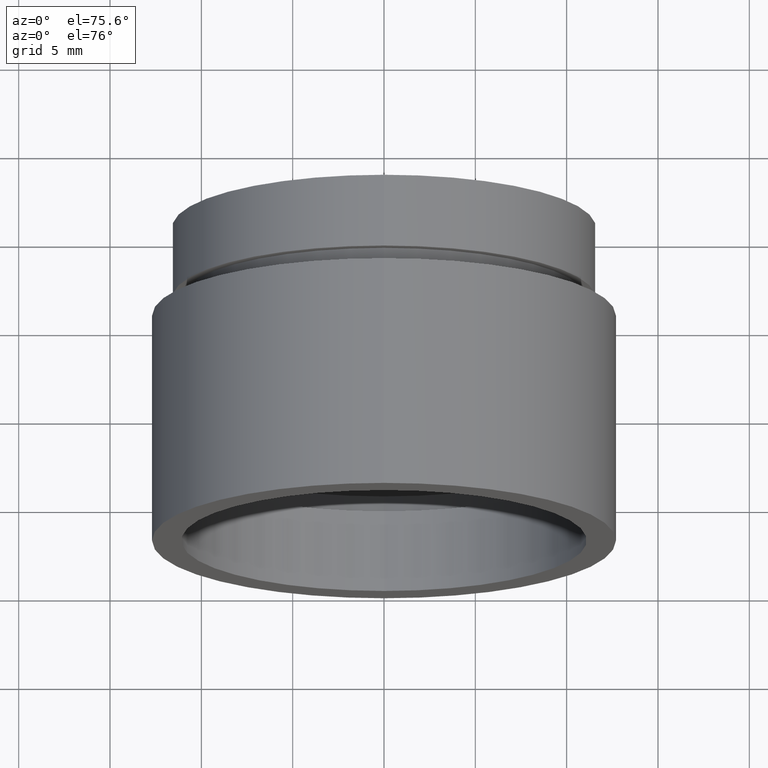
[diagram: clean part render]
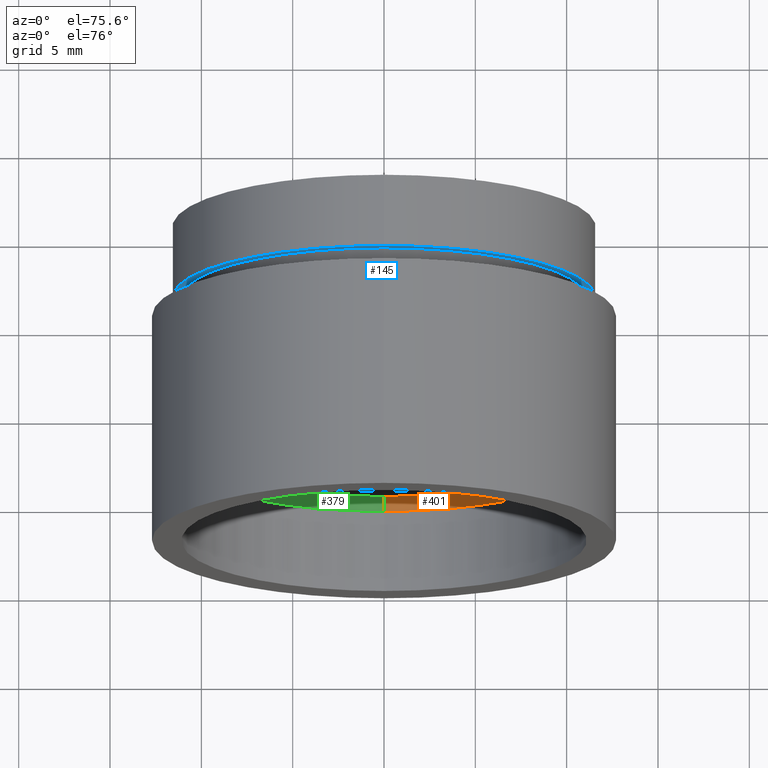
[diagram: same view with three faces highlighted in distinct colors, each labeled with its STEP entity id]
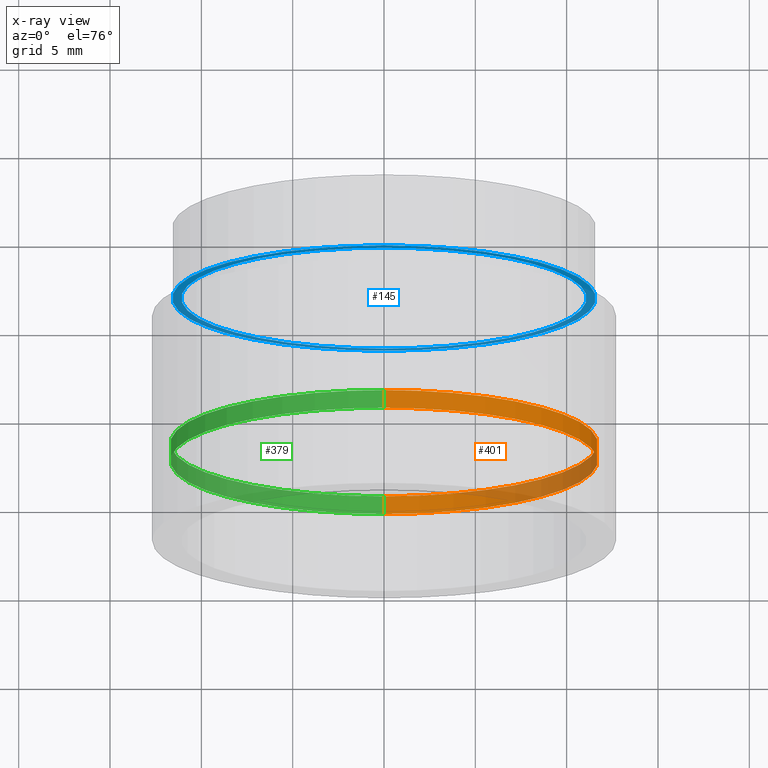
[diagram: x-ray of the same camera — body ghosted, the three highlighted faces saturated]
A machine part, auxiliary view with three faces highlighted in distinct colors.
The next image is the same camera in x-ray (body ghosted, the three faces saturated) — at least one of them is partly hidden behind the body in this view.
Their STEP definitions:

[orange] entity #401 — the highlighted cylindrical surface (partial cylindrical patch) has radius 11.7 mm, axis along (-0, 1, -0).
#4 = EDGE_LOOP ( 'NONE', ( #94, #389, #225, #102 ) ) ;
#18 = DIRECTION ( 'NONE',  ( -0.0000000000000000000, 1.000000000000000000, -0.0000000000000000000 ) ) ;
#19 = CARTESIAN_POINT ( 'NONE',  ( 0.0000000000000000000, 5.499999999999976900, 0.0000000000000000000 ) ) ;
#26 = CARTESIAN_POINT ( 'NONE',  ( 0.0000000000000000000, 5.499999999999976900, 11.70000000000001700 ) ) ;
#38 = EDGE_CURVE ( 'NONE', #353, #234, #381, .T. ) ;
#40 = DIRECTION ( 'NONE',  ( -0.0000000000000000000, 1.000000000000000000, -0.0000000000000000000 ) ) ;
#52 = VECTOR ( 'NONE', #602, 1000.000000000000000 ) ;
#79 = CARTESIAN_POINT ( 'NONE',  ( 0.0000000000000000000, 4.499999999999976000, 11.70000000000001700 ) ) ;
#86 = CARTESIAN_POINT ( 'NONE',  ( 0.0000000000000000000, 161.3761669434274500, 0.0000000000000000000 ) ) ;
#94 = ORIENTED_EDGE ( 'NONE', *, *, #510, .F. ) ;
#102 = ORIENTED_EDGE ( 'NONE', *, *, #195, .T. ) ;
#113 = CYLINDRICAL_SURFACE ( 'NONE', #431, 11.70000000000001700 ) ;
#195 = EDGE_CURVE ( 'NONE', #433, #418, #398, .T. ) ;
#209 = DIRECTION ( 'NONE',  ( 0.0000000000000000000, 0.0000000000000000000, 1.000000000000000000 ) ) ;
#216 = DIRECTION ( 'NONE',  ( 0.0000000000000000000, 0.0000000000000000000, 1.000000000000000000 ) ) ;
#225 = ORIENTED_EDGE ( 'NONE', *, *, #475, .T. ) ;
#230 = DIRECTION ( 'NONE',  ( -0.0000000000000000000, 1.000000000000000000, -0.0000000000000000000 ) ) ;
#234 = VERTEX_POINT ( 'NONE', #305 ) ;
#267 = CARTESIAN_POINT ( 'NONE',  ( 0.0000000000000000000, 161.3761669434274500, 11.70000000000001700 ) ) ;
#295 = LINE ( 'NONE', #267, #367 ) ;
#305 = CARTESIAN_POINT ( 'NONE',  ( 1.432836755002405500E-015, 4.499999999999976000, -11.70000000000001700 ) ) ;
#319 = CARTESIAN_POINT ( 'NONE',  ( 1.432836755002405500E-015, 161.3761669434274500, -11.70000000000001700 ) ) ;
#336 = AXIS2_PLACEMENT_3D ( 'NONE', #19, #350, #209 ) ;
#349 = FACE_OUTER_BOUND ( 'NONE', #4, .T. ) ;
#350 = DIRECTION ( 'NONE',  ( -0.0000000000000000000, 1.000000000000000000, -0.0000000000000000000 ) ) ;
#353 = VERTEX_POINT ( 'NONE', #79 ) ;
#367 = VECTOR ( 'NONE', #40, 1000.000000000000000 ) ;
#371 = CARTESIAN_POINT ( 'NONE',  ( 1.432836755002405500E-015, 5.499999999999976900, -11.70000000000001700 ) ) ;
#381 = CIRCLE ( 'NONE', #410, 11.70000000000001700 ) ;
#389 = ORIENTED_EDGE ( 'NONE', *, *, #38, .F. ) ;
#398 = CIRCLE ( 'NONE', #336, 11.70000000000001700 ) ;
#401 = ADVANCED_FACE ( 'NONE', ( #349 ), #113, .F. ) ;
#402 = CARTESIAN_POINT ( 'NONE',  ( 0.0000000000000000000, 4.499999999999976000, 0.0000000000000000000 ) ) ;
#410 = AXIS2_PLACEMENT_3D ( 'NONE', #402, #18, #216 ) ;
#418 = VERTEX_POINT ( 'NONE', #371 ) ;
#431 = AXIS2_PLACEMENT_3D ( 'NONE', #86, #230, #565 ) ;
#433 = VERTEX_POINT ( 'NONE', #26 ) ;
#475 = EDGE_CURVE ( 'NONE', #353, #433, #295, .T. ) ;
#479 = LINE ( 'NONE', #319, #52 ) ;
#510 = EDGE_CURVE ( 'NONE', #234, #418, #479, .T. ) ;
#565 = DIRECTION ( 'NONE',  ( 0.0000000000000000000, 0.0000000000000000000, 1.000000000000000000 ) ) ;
#602 = DIRECTION ( 'NONE',  ( -0.0000000000000000000, 1.000000000000000000, -0.0000000000000000000 ) ) ;

[blue] entity #145 — the highlighted planar face has unit normal (-0, 1, 0).
#12 = AXIS2_PLACEMENT_3D ( 'NONE', #135, #36, #511 ) ;
#14 = CIRCLE ( 'NONE', #160, 11.10000000000001700 ) ;
#36 = DIRECTION ( 'NONE',  ( -0.0000000000000000000, 1.000000000000000000, 0.0000000000000000000 ) ) ;
#43 = EDGE_CURVE ( 'NONE', #476, #70, #14, .T. ) ;
#66 = EDGE_CURVE ( 'NONE', #70, #476, #116, .T. ) ;
#70 = VERTEX_POINT ( 'NONE', #600 ) ;
#108 = CIRCLE ( 'NONE', #242, 11.60000000000001700 ) ;
#116 = CIRCLE ( 'NONE', #121, 11.10000000000001700 ) ;
#121 = AXIS2_PLACEMENT_3D ( 'NONE', #168, #544, #451 ) ;
#129 = CARTESIAN_POINT ( 'NONE',  ( 0.0000000000000000000, 13.69999999999999000, 0.0000000000000000000 ) ) ;
#130 = CARTESIAN_POINT ( 'NONE',  ( 1.420590287010931700E-015, 13.69999999999999000, -11.60000000000001700 ) ) ;
#135 = CARTESIAN_POINT ( 'NONE',  ( 11.10000000000001700, 13.69999999999998000, 0.0000000000000000000 ) ) ;
#145 = ADVANCED_FACE ( 'NONE', ( #286, #434 ), #364, .F. ) ;
#160 = AXIS2_PLACEMENT_3D ( 'NONE', #594, #259, #208 ) ;
#168 = CARTESIAN_POINT ( 'NONE',  ( 0.0000000000000000000, 13.69999999999999000, 0.0000000000000000000 ) ) ;
#180 = DIRECTION ( 'NONE',  ( 0.0000000000000000000, 0.0000000000000000000, 1.000000000000000000 ) ) ;
#208 = DIRECTION ( 'NONE',  ( 0.0000000000000000000, 0.0000000000000000000, 1.000000000000000000 ) ) ;
#211 = EDGE_LOOP ( 'NONE', ( #516, #526 ) ) ;
#219 = CARTESIAN_POINT ( 'NONE',  ( 0.0000000000000000000, 13.69999999999999000, 11.60000000000001700 ) ) ;
#222 = DIRECTION ( 'NONE',  ( -0.0000000000000000000, 1.000000000000000000, -0.0000000000000000000 ) ) ;
#242 = AXIS2_PLACEMENT_3D ( 'NONE', #129, #452, #180 ) ;
#246 = ORIENTED_EDGE ( 'NONE', *, *, #562, .F. ) ;
#259 = DIRECTION ( 'NONE',  ( -0.0000000000000000000, 1.000000000000000000, -0.0000000000000000000 ) ) ;
#284 = CIRCLE ( 'NONE', #422, 11.60000000000001700 ) ;
#286 = FACE_OUTER_BOUND ( 'NONE', #561, .T. ) ;
#287 = VERTEX_POINT ( 'NONE', #130 ) ;
#333 = VERTEX_POINT ( 'NONE', #219 ) ;
#364 = PLANE ( 'NONE',  #12 ) ;
#404 = CARTESIAN_POINT ( 'NONE',  ( 0.0000000000000000000, 13.69999999999999000, 0.0000000000000000000 ) ) ;
#422 = AXIS2_PLACEMENT_3D ( 'NONE', #404, #222, #513 ) ;
#429 = EDGE_CURVE ( 'NONE', #333, #287, #108, .T. ) ;
#434 = FACE_BOUND ( 'NONE', #211, .T. ) ;
#451 = DIRECTION ( 'NONE',  ( 0.0000000000000000000, 0.0000000000000000000, 1.000000000000000000 ) ) ;
#452 = DIRECTION ( 'NONE',  ( -0.0000000000000000000, 1.000000000000000000, -0.0000000000000000000 ) ) ;
#476 = VERTEX_POINT ( 'NONE', #514 ) ;
#511 = DIRECTION ( 'NONE',  ( 0.0000000000000000000, 0.0000000000000000000, 1.000000000000000000 ) ) ;
#513 = DIRECTION ( 'NONE',  ( 0.0000000000000000000, 0.0000000000000000000, 1.000000000000000000 ) ) ;
#514 = CARTESIAN_POINT ( 'NONE',  ( 0.0000000000000000000, 13.69999999999999000, 11.10000000000001700 ) ) ;
#516 = ORIENTED_EDGE ( 'NONE', *, *, #43, .T. ) ;
#526 = ORIENTED_EDGE ( 'NONE', *, *, #66, .T. ) ;
#535 = ORIENTED_EDGE ( 'NONE', *, *, #429, .F. ) ;
#544 = DIRECTION ( 'NONE',  ( -0.0000000000000000000, 1.000000000000000000, -0.0000000000000000000 ) ) ;
#561 = EDGE_LOOP ( 'NONE', ( #535, #246 ) ) ;
#562 = EDGE_CURVE ( 'NONE', #287, #333, #284, .T. ) ;
#594 = CARTESIAN_POINT ( 'NONE',  ( 0.0000000000000000000, 13.69999999999999000, 0.0000000000000000000 ) ) ;
#600 = CARTESIAN_POINT ( 'NONE',  ( 1.359357947053564100E-015, 13.69999999999999000, -11.10000000000001700 ) ) ;

[green] entity #379 — the highlighted cylindrical surface (partial cylindrical patch) has radius 11.7 mm, axis along (-0, 1, -0).
#26 = CARTESIAN_POINT ( 'NONE',  ( 0.0000000000000000000, 5.499999999999976900, 11.70000000000001700 ) ) ;
#40 = DIRECTION ( 'NONE',  ( -0.0000000000000000000, 1.000000000000000000, -0.0000000000000000000 ) ) ;
#51 = ORIENTED_EDGE ( 'NONE', *, *, #510, .T. ) ;
#52 = VECTOR ( 'NONE', #602, 1000.000000000000000 ) ;
#79 = CARTESIAN_POINT ( 'NONE',  ( 0.0000000000000000000, 4.499999999999976000, 11.70000000000001700 ) ) ;
#85 = DIRECTION ( 'NONE',  ( -0.0000000000000000000, 1.000000000000000000, -0.0000000000000000000 ) ) ;
#99 = DIRECTION ( 'NONE',  ( -0.0000000000000000000, 1.000000000000000000, -0.0000000000000000000 ) ) ;
#132 = CIRCLE ( 'NONE', #355, 11.70000000000001700 ) ;
#141 = AXIS2_PLACEMENT_3D ( 'NONE', #517, #85, #309 ) ;
#154 = EDGE_CURVE ( 'NONE', #418, #433, #156, .T. ) ;
#156 = CIRCLE ( 'NONE', #141, 11.70000000000001700 ) ;
#158 = EDGE_LOOP ( 'NONE', ( #201, #51, #596, #317 ) ) ;
#200 = FACE_OUTER_BOUND ( 'NONE', #158, .T. ) ;
#201 = ORIENTED_EDGE ( 'NONE', *, *, #578, .F. ) ;
#215 = CARTESIAN_POINT ( 'NONE',  ( 0.0000000000000000000, 4.499999999999976000, 0.0000000000000000000 ) ) ;
#228 = CARTESIAN_POINT ( 'NONE',  ( 0.0000000000000000000, 161.3761669434274500, 0.0000000000000000000 ) ) ;
#234 = VERTEX_POINT ( 'NONE', #305 ) ;
#267 = CARTESIAN_POINT ( 'NONE',  ( 0.0000000000000000000, 161.3761669434274500, 11.70000000000001700 ) ) ;
#295 = LINE ( 'NONE', #267, #367 ) ;
#305 = CARTESIAN_POINT ( 'NONE',  ( 1.432836755002405500E-015, 4.499999999999976000, -11.70000000000001700 ) ) ;
#309 = DIRECTION ( 'NONE',  ( 0.0000000000000000000, 0.0000000000000000000, 1.000000000000000000 ) ) ;
#314 = DIRECTION ( 'NONE',  ( 0.0000000000000000000, 0.0000000000000000000, 1.000000000000000000 ) ) ;
#317 = ORIENTED_EDGE ( 'NONE', *, *, #475, .F. ) ;
#319 = CARTESIAN_POINT ( 'NONE',  ( 1.432836755002405500E-015, 161.3761669434274500, -11.70000000000001700 ) ) ;
#353 = VERTEX_POINT ( 'NONE', #79 ) ;
#355 = AXIS2_PLACEMENT_3D ( 'NONE', #215, #359, #314 ) ;
#359 = DIRECTION ( 'NONE',  ( -0.0000000000000000000, 1.000000000000000000, -0.0000000000000000000 ) ) ;
#367 = VECTOR ( 'NONE', #40, 1000.000000000000000 ) ;
#371 = CARTESIAN_POINT ( 'NONE',  ( 1.432836755002405500E-015, 5.499999999999976900, -11.70000000000001700 ) ) ;
#379 = ADVANCED_FACE ( 'NONE', ( #200 ), #493, .F. ) ;
#418 = VERTEX_POINT ( 'NONE', #371 ) ;
#426 = DIRECTION ( 'NONE',  ( 0.0000000000000000000, 0.0000000000000000000, 1.000000000000000000 ) ) ;
#433 = VERTEX_POINT ( 'NONE', #26 ) ;
#475 = EDGE_CURVE ( 'NONE', #353, #433, #295, .T. ) ;
#479 = LINE ( 'NONE', #319, #52 ) ;
#493 = CYLINDRICAL_SURFACE ( 'NONE', #551, 11.70000000000001700 ) ;
#510 = EDGE_CURVE ( 'NONE', #234, #418, #479, .T. ) ;
#517 = CARTESIAN_POINT ( 'NONE',  ( 0.0000000000000000000, 5.499999999999976900, 0.0000000000000000000 ) ) ;
#551 = AXIS2_PLACEMENT_3D ( 'NONE', #228, #99, #426 ) ;
#578 = EDGE_CURVE ( 'NONE', #234, #353, #132, .T. ) ;
#596 = ORIENTED_EDGE ( 'NONE', *, *, #154, .T. ) ;
#602 = DIRECTION ( 'NONE',  ( -0.0000000000000000000, 1.000000000000000000, -0.0000000000000000000 ) ) ;